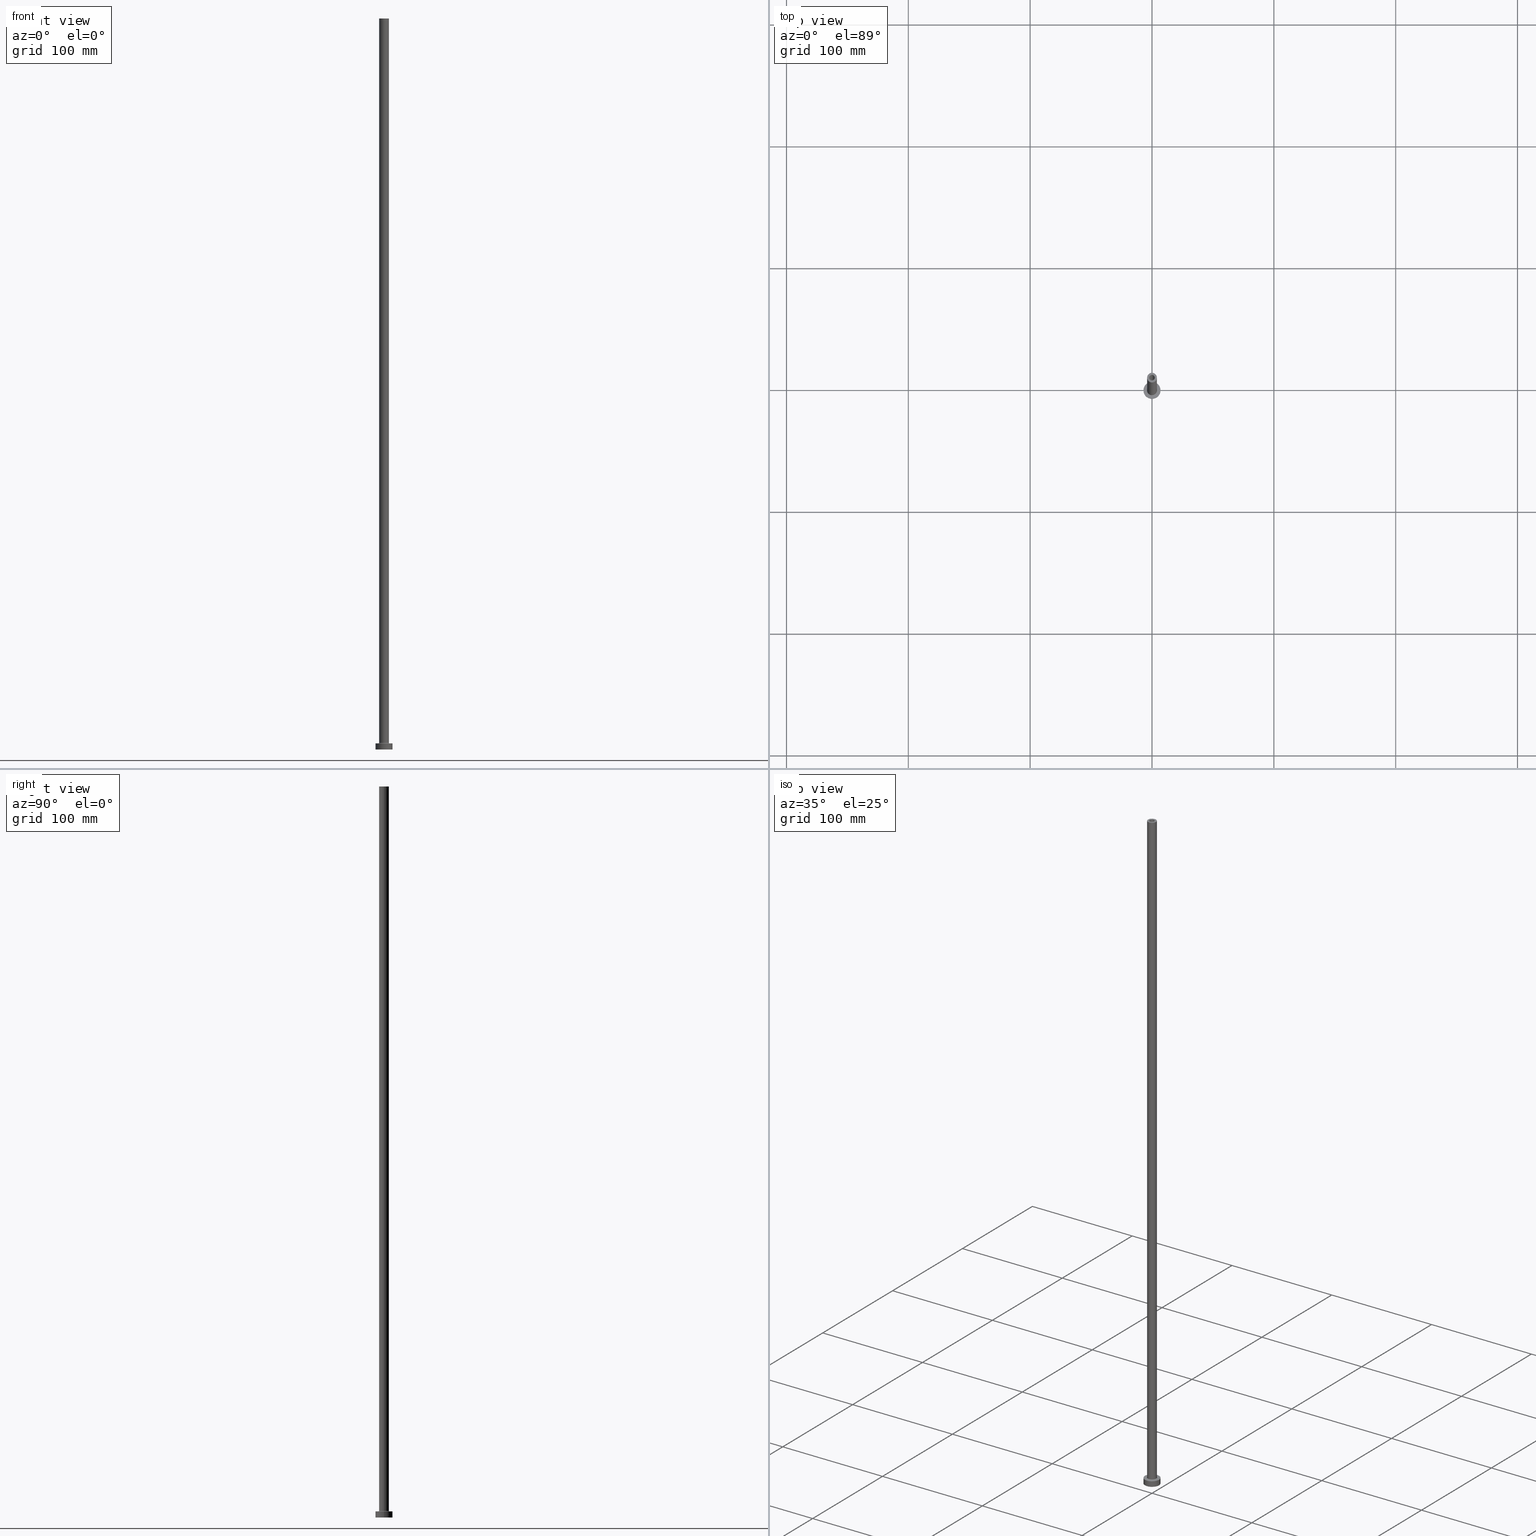
[diagram: canonical four-view strip — front | top / right | iso, engineering-drawing reading convention]
A machine part, canonical four-view strip (front | top / right | iso — engineering-drawing reading convention). The complete STEP part file that produces these views, byte-faithful:
ISO-10303-21;
HEADER;
FILE_DESCRIPTION (( 'STEP AP203' ),
    '1' );
FILE_NAME ('9037.STEP',
    '2023-02-13T17:20:11',
    ( '' ),
    ( '' ),
    'SwSTEP 2.0',
    'SolidWorks 2019',
    '' );
FILE_SCHEMA (( 'CONFIG_CONTROL_DESIGN' ));
ENDSEC;

DATA;
#1 = EDGE_LOOP ( 'NONE', ( #31, #64, #137, #22 ) ) ;
#2 = CARTESIAN_POINT ( 'NONE',  ( -2.250000000000000000, 0.000000000000000000, 600.0000000000000000 ) ) ;
#3 = APPROVAL ( #33, 'NEUR�EN�' ) ;
#4 = ORIENTED_EDGE ( 'NONE', *, *, #444, .F. ) ;
#5 = SHAPE_DEFINITION_REPRESENTATION ( #305, #226 ) ;
#6 = DIRECTION ( 'NONE',  ( 1.000000000000000000, 0.000000000000000000, 0.000000000000000000 ) ) ;
#7 = CARTESIAN_POINT ( 'NONE',  ( 0.000000000000000000, 0.000000000000000000, 600.0000000000000000 ) ) ;
#8 = CC_DESIGN_DATE_AND_TIME_ASSIGNMENT ( #203, #101, ( #122 ) ) ;
#9 = CARTESIAN_POINT ( 'NONE',  ( -2.399999999999999911, 0.000000000000000000, 554.9999999999998863 ) ) ;
#10 = ORIENTED_EDGE ( 'NONE', *, *, #105, .T. ) ;
#11 = LINE ( 'NONE', #293, #222 ) ;
#12 = AXIS2_PLACEMENT_3D ( 'NONE', #429, #252, #332 ) ;
#13 = FACE_BOUND ( 'NONE', #412, .T. ) ;
#14 = APPROVAL_ROLE ( '' ) ;
#15 = DIRECTION ( 'NONE',  ( -1.000000000000000000, 0.000000000000000000, 0.000000000000000000 ) ) ;
#16 = ADVANCED_FACE ( 'NONE', ( #440 ), #124, .T. ) ;
#17 = CARTESIAN_POINT ( 'NONE',  ( 0.000000000000000000, 0.000000000000000000, 0.000000000000000000 ) ) ;
#18 = VERTEX_POINT ( 'NONE', #267 ) ;
#19 = PRODUCT_RELATED_PRODUCT_CATEGORY ( 'detail', '', ( #352 ) ) ;
#20 = DIRECTION ( 'NONE',  ( 0.000000000000000000, 0.000000000000000000, 1.000000000000000000 ) ) ;
#21 = DIRECTION ( 'NONE',  ( 0.000000000000000000, 0.000000000000000000, -1.000000000000000000 ) ) ;
#22 = ORIENTED_EDGE ( 'NONE', *, *, #414, .F. ) ;
#23 = CIRCLE ( 'NONE', #326, 4.500000000000000888 ) ;
#24 = DIRECTION ( 'NONE',  ( 1.000000000000000000, 0.000000000000000000, 0.000000000000000000 ) ) ;
#25 = DIRECTION ( 'NONE',  ( -1.000000000000000000, 0.000000000000000000, 0.000000000000000000 ) ) ;
#26 = EDGE_CURVE ( 'NONE', #74, #346, #166, .T. ) ;
#27 = FACE_OUTER_BOUND ( 'NONE', #307, .T. ) ;
#28 = COORDINATED_UNIVERSAL_TIME_OFFSET ( 1, 0, .AHEAD. ) ;
#29 = AXIS2_PLACEMENT_3D ( 'NONE', #413, #439, #24 ) ;
#30 = DIRECTION ( 'NONE',  ( 0.000000000000000000, 0.000000000000000000, 1.000000000000000000 ) ) ;
#31 = ORIENTED_EDGE ( 'NONE', *, *, #44, .T. ) ;
#32 = APPROVAL_STATUS ( 'not_yet_approved' ) ;
#33 = APPROVAL_STATUS ( 'not_yet_approved' ) ;
#34 = PERSON_AND_ORGANIZATION ( #125, #61 ) ;
#35 = LINE ( 'NONE', #171, #405 ) ;
#36 = ADVANCED_FACE ( 'NONE', ( #230 ), #410, .T. ) ;
#37 = CARTESIAN_POINT ( 'NONE',  ( 0.000000000000000000, 0.000000000000000000, 554.9999999999998863 ) ) ;
#38 = ORIENTED_EDGE ( 'NONE', *, *, #322, .F. ) ;
#39 = EDGE_CURVE ( 'NONE', #272, #400, #169, .T. ) ;
#40 = DIRECTION ( 'NONE',  ( 0.000000000000000000, 0.000000000000000000, -1.000000000000000000 ) ) ;
#41 = PERSON_AND_ORGANIZATION ( #125, #61 ) ;
#42 = CARTESIAN_POINT ( 'NONE',  ( 7.000000000000000000, 8.572527594031473190E-16, 0.000000000000000000 ) ) ;
#43 = PERSON_AND_ORGANIZATION_ROLE ( 'design_owner' ) ;
#44 = EDGE_CURVE ( 'NONE', #87, #18, #299, .T. ) ;
#45 = CARTESIAN_POINT ( 'NONE',  ( 0.000000000000000000, 0.000000000000000000, 5.000000000000000000 ) ) ;
#46 = AXIS2_PLACEMENT_3D ( 'NONE', #216, #157, #290 ) ;
#47 = FACE_OUTER_BOUND ( 'NONE', #205, .T. ) ;
#48 = DIRECTION ( 'NONE',  ( 0.000000000000000000, 0.000000000000000000, 1.000000000000000000 ) ) ;
#49 = ORIENTED_EDGE ( 'NONE', *, *, #265, .T. ) ;
#50 = EDGE_CURVE ( 'NONE', #445, #346, #316, .T. ) ;
#51 = FACE_OUTER_BOUND ( 'NONE', #200, .T. ) ;
#52 = AXIS2_PLACEMENT_3D ( 'NONE', #298, #40, #72 ) ;
#53 = ORIENTED_EDGE ( 'NONE', *, *, #251, .T. ) ;
#54 = APPROVAL ( #32, 'NEUR�EN�' ) ;
#55 = AXIS2_PLACEMENT_3D ( 'NONE', #133, #21, #15 ) ;
#56 = LINE ( 'NONE', #311, #447 ) ;
#57 = FACE_OUTER_BOUND ( 'NONE', #217, .T. ) ;
#58 = ORIENTED_EDGE ( 'NONE', *, *, #394, .F. ) ;
#59 = ORIENTED_EDGE ( 'NONE', *, *, #39, .F. ) ;
#60 = CIRCLE ( 'NONE', #12, 2.399999999999999911 ) ;
#61 = ORGANIZATION ( 'NEUR�EN�', 'NEUR�EN�', '' ) ;
#62 = ORIENTED_EDGE ( 'NONE', *, *, #426, .F. ) ;
#63 = ORIENTED_EDGE ( 'NONE', *, *, #417, .T. ) ;
#64 = ORIENTED_EDGE ( 'NONE', *, *, #322, .T. ) ;
#65 = EDGE_CURVE ( 'NONE', #378, #76, #35, .T. ) ;
#66 = COORDINATED_UNIVERSAL_TIME_OFFSET ( 1, 0, .AHEAD. ) ;
#67 = AXIS2_PLACEMENT_3D ( 'NONE', #45, #223, #78 ) ;
#68 = CC_DESIGN_APPROVAL ( #313, ( #122 ) ) ;
#69 = ORIENTED_EDGE ( 'NONE', *, *, #50, .T. ) ;
#70 = DIRECTION ( 'NONE',  ( -0.000000000000000000, -0.000000000000000000, -1.000000000000000000 ) ) ;
#71 = AXIS2_PLACEMENT_3D ( 'NONE', #461, #242, #212 ) ;
#72 = DIRECTION ( 'NONE',  ( -1.000000000000000000, 0.000000000000000000, 0.000000000000000000 ) ) ;
#73 = CARTESIAN_POINT ( 'NONE',  ( 0.000000000000000000, 0.000000000000000000, 561.7882250993908428 ) ) ;
#74 = VERTEX_POINT ( 'NONE', #382 ) ;
#75 = CARTESIAN_POINT ( 'NONE',  ( 2.399999999999999911, 2.939152317953647106E-16, 0.000000000000000000 ) ) ;
#76 = VERTEX_POINT ( 'NONE', #143 ) ;
#77 = EDGE_CURVE ( 'NONE', #281, #76, #221, .T. ) ;
#78 = DIRECTION ( 'NONE',  ( -1.000000000000000000, 0.000000000000000000, 0.000000000000000000 ) ) ;
#79 = AXIS2_PLACEMENT_3D ( 'NONE', #134, #238, #312 ) ;
#80 = CARTESIAN_POINT ( 'NONE',  ( 4.500000000000000888, 0.000000000000000000, 5.499999999999949374 ) ) ;
#81 = DIRECTION ( 'NONE',  ( -0.000000000000000000, -0.000000000000000000, -1.000000000000000000 ) ) ;
#82 = EDGE_CURVE ( 'NONE', #378, #283, #363, .T. ) ;
#83 = LINE ( 'NONE', #345, #119 ) ;
#84 = AXIS2_PLACEMENT_3D ( 'NONE', #114, #434, #150 ) ;
#85 =( GEOMETRIC_REPRESENTATION_CONTEXT ( 3 ) GLOBAL_UNCERTAINTY_ASSIGNED_CONTEXT ( ( #282 ) ) GLOBAL_UNIT_ASSIGNED_CONTEXT ( ( #147, #418, #459 ) ) REPRESENTATION_CONTEXT ( 'NONE', 'WORKASPACE' ) );
#86 = LINE ( 'NONE', #441, #425 ) ;
#87 = VERTEX_POINT ( 'NONE', #2 ) ;
#88 = CARTESIAN_POINT ( 'NONE',  ( 0.000000000000000000, 0.000000000000000000, 5.000000000000000000 ) ) ;
#89 = CC_DESIGN_DATE_AND_TIME_ASSIGNMENT ( #97, #358, ( #390 ) ) ;
#90 = ORIENTED_EDGE ( 'NONE', *, *, #154, .T. ) ;
#91 = CC_DESIGN_APPROVAL ( #54, ( #390 ) ) ;
#92 = ADVANCED_FACE ( 'NONE', ( #423, #102 ), #353, .T. ) ;
#93 = EDGE_LOOP ( 'NONE', ( #162, #106, #206, #323 ) ) ;
#94 = CYLINDRICAL_SURFACE ( 'NONE', #52, 2.250000000000000000 ) ;
#95 = ADVANCED_FACE ( 'NONE', ( #209 ), #214, .F. ) ;
#96 = ORIENTED_EDGE ( 'NONE', *, *, #65, .T. ) ;
#97 = DATE_AND_TIME ( #319, #231 ) ;
#98 = DESIGN_CONTEXT ( 'detailed design', #104, 'design' ) ;
#99 = ORIENTED_EDGE ( 'NONE', *, *, #151, .F. ) ;
#100 = PRODUCT_DEFINITION_FORMATION_WITH_SPECIFIED_SOURCE ( 'LIBOVOLN�', '', #352, .NOT_KNOWN. ) ;
#101 = DATE_TIME_ROLE ( 'creation_date' ) ;
#102 = FACE_OUTER_BOUND ( 'NONE', #164, .T. ) ;
#103 = ORIENTED_EDGE ( 'NONE', *, *, #417, .F. ) ;
#104 = APPLICATION_CONTEXT ( 'configuration controlled 3d designs of mechanical parts and assemblies' ) ;
#105 = EDGE_CURVE ( 'NONE', #74, #152, #341, .T. ) ;
#106 = ORIENTED_EDGE ( 'NONE', *, *, #406, .T. ) ;
#107 = AXIS2_PLACEMENT_3D ( 'NONE', #73, #219, #365 ) ;
#108 = FACE_OUTER_BOUND ( 'NONE', #93, .T. ) ;
#109 = AXIS2_PLACEMENT_3D ( 'NONE', #451, #20, #126 ) ;
#110 = ORIENTED_EDGE ( 'NONE', *, *, #131, .F. ) ;
#111 = CARTESIAN_POINT ( 'NONE',  ( 0.000000000000000000, 0.000000000000000000, 5.000000000000000000 ) ) ;
#112 = ORIENTED_EDGE ( 'NONE', *, *, #208, .F. ) ;
#113 = ADVANCED_FACE ( 'NONE', ( #27 ), #139, .F. ) ;
#114 = CARTESIAN_POINT ( 'NONE',  ( 0.000000000000000000, 0.000000000000000000, 0.000000000000000000 ) ) ;
#115 = ORIENTED_EDGE ( 'NONE', *, *, #82, .F. ) ;
#116 = ADVANCED_FACE ( 'NONE', ( #317 ), #94, .F. ) ;
#117 = DATE_AND_TIME ( #436, #288 ) ;
#118 = DIRECTION ( 'NONE',  ( 0.000000000000000000, 0.000000000000000000, 1.000000000000000000 ) ) ;
#119 = VECTOR ( 'NONE', #266, 1000.000000000000000 ) ;
#120 = LOCAL_TIME ( 18, 20, 11.00000000000000000, #28 ) ;
#121 = AXIS2_PLACEMENT_3D ( 'NONE', #370, #48, #188 ) ;
#122 = PRODUCT_DEFINITION ( 'NEZN�M�', '', #100, #98 ) ;
#123 = PLANE ( 'NONE',  #192 ) ;
#124 = CYLINDRICAL_SURFACE ( 'NONE', #79, 4.000000000000000000 ) ;
#125 = PERSON ( 'NEUR�EN�', 'NEUR�EN�', 'NEUR�EN�', ('NEUR�EN�'), ('NEUR�EN�'), ('NEUR�EN�') ) ;
#126 = DIRECTION ( 'NONE',  ( 1.000000000000000000, 0.000000000000000000, 0.000000000000000000 ) ) ;
#127 = DIRECTION ( 'NONE',  ( -0.000000000000000000, -0.000000000000000000, -1.000000000000000000 ) ) ;
#128 = DIRECTION ( 'NONE',  ( -0.000000000000000000, -0.000000000000000000, -1.000000000000000000 ) ) ;
#129 = AXIS2_PLACEMENT_3D ( 'NONE', #197, #349, #25 ) ;
#130 = ORIENTED_EDGE ( 'NONE', *, *, #430, .F. ) ;
#131 = EDGE_CURVE ( 'NONE', #18, #87, #454, .T. ) ;
#132 = CC_DESIGN_APPROVAL ( #3, ( #100 ) ) ;
#133 = CARTESIAN_POINT ( 'NONE',  ( 0.000000000000000000, 0.000000000000000000, 561.7882250993908428 ) ) ;
#134 = CARTESIAN_POINT ( 'NONE',  ( 0.000000000000000000, 0.000000000000000000, 600.0000000000000000 ) ) ;
#135 = DATE_AND_TIME ( #450, #172 ) ;
#136 = DIRECTION ( 'NONE',  ( 0.000000000000000000, 0.000000000000000000, 1.000000000000000000 ) ) ;
#137 = ORIENTED_EDGE ( 'NONE', *, *, #257, .F. ) ;
#138 = DIRECTION ( 'NONE',  ( 1.000000000000000000, 0.000000000000000000, 0.000000000000000000 ) ) ;
#139 = TOROIDAL_SURFACE ( 'NONE', #189, 4.500000000000000888, 0.5000000000000000000 ) ;
#140 = COORDINATED_UNIVERSAL_TIME_OFFSET ( 1, 0, .AHEAD. ) ;
#141 = CC_DESIGN_PERSON_AND_ORGANIZATION_ASSIGNMENT ( #207, #176, ( #390 ) ) ;
#142 = ORIENTED_EDGE ( 'NONE', *, *, #403, .T. ) ;
#143 = CARTESIAN_POINT ( 'NONE',  ( -7.000000000000000000, 0.000000000000000000, 0.000000000000000000 ) ) ;
#144 = ORIENTED_EDGE ( 'NONE', *, *, #296, .F. ) ;
#145 = EDGE_LOOP ( 'NONE', ( #320, #110 ) ) ;
#146 = VECTOR ( 'NONE', #277, 1000.000000000000000 ) ;
#147 =( LENGTH_UNIT ( ) NAMED_UNIT ( * ) SI_UNIT ( .MILLI., .METRE. ) );
#148 = APPROVAL_PERSON_ORGANIZATION ( #336, #313, #14 ) ;
#149 = ORIENTED_EDGE ( 'NONE', *, *, #376, .F. ) ;
#150 = DIRECTION ( 'NONE',  ( 1.000000000000000000, 0.000000000000000000, 0.000000000000000000 ) ) ;
#151 = EDGE_CURVE ( 'NONE', #213, #400, #372, .T. ) ;
#152 = VERTEX_POINT ( 'NONE', #263 ) ;
#153 = AXIS2_PLACEMENT_3D ( 'NONE', #369, #364, #404 ) ;
#154 = EDGE_CURVE ( 'NONE', #445, #173, #355, .T. ) ;
#155 = CARTESIAN_POINT ( 'NONE',  ( -4.500000000000000888, 5.510910596163088569E-16, 4.999999999999975131 ) ) ;
#156 = CIRCLE ( 'NONE', #264, 7.000000000000000000 ) ;
#157 = DIRECTION ( 'NONE',  ( 0.000000000000000000, 0.000000000000000000, 1.000000000000000000 ) ) ;
#158 = AXIS2_PLACEMENT_3D ( 'NONE', #174, #321, #278 ) ;
#159 = CARTESIAN_POINT ( 'NONE',  ( -2.250000000000000000, 0.000000000000000000, 554.9999999999998863 ) ) ;
#160 = ORIENTED_EDGE ( 'NONE', *, *, #151, .T. ) ;
#161 = DIRECTION ( 'NONE',  ( 1.000000000000000000, 0.000000000000000000, 0.000000000000000000 ) ) ;
#162 = ORIENTED_EDGE ( 'NONE', *, *, #449, .F. ) ;
#163 = CARTESIAN_POINT ( 'NONE',  ( 0.000000000000000000, 0.000000000000000000, 5.000000000000000000 ) ) ;
#164 = EDGE_LOOP ( 'NONE', ( #270, #10 ) ) ;
#165 = FACE_OUTER_BOUND ( 'NONE', #286, .T. ) ;
#166 = LINE ( 'NONE', #195, #398 ) ;
#167 = APPROVAL_ROLE ( '' ) ;
#168 = DIRECTION ( 'NONE',  ( 0.000000000000000000, 0.000000000000000000, 1.000000000000000000 ) ) ;
#169 = LINE ( 'NONE', #452, #146 ) ;
#170 = ADVANCED_FACE ( 'NONE', ( #259 ), #254, .T. ) ;
#171 = CARTESIAN_POINT ( 'NONE',  ( -7.000000000000000000, 0.000000000000000000, 5.000000000000000000 ) ) ;
#172 = LOCAL_TIME ( 18, 20, 11.00000000000000000, #310 ) ;
#173 = VERTEX_POINT ( 'NONE', #155 ) ;
#174 = CARTESIAN_POINT ( 'NONE',  ( 0.000000000000000000, 0.000000000000000000, 5.000000000000000000 ) ) ;
#175 = ORIENTED_EDGE ( 'NONE', *, *, #430, .T. ) ;
#176 = PERSON_AND_ORGANIZATION_ROLE ( 'classification_officer' ) ;
#177 = CARTESIAN_POINT ( 'NONE',  ( 0.000000000000000000, 0.000000000000000000, 0.000000000000000000 ) ) ;
#178 = AXIS2_PLACEMENT_3D ( 'NONE', #37, #331, #397 ) ;
#179 = CIRCLE ( 'NONE', #273, 2.399999999999999911 ) ;
#180 = ADVANCED_FACE ( 'NONE', ( #47 ), #431, .F. ) ;
#181 = DIRECTION ( 'NONE',  ( 0.000000000000000000, -1.000000000000000000, 0.000000000000000000 ) ) ;
#182 = CARTESIAN_POINT ( 'NONE',  ( 7.000000000000000000, 8.572527594031473190E-16, 5.000000000000000000 ) ) ;
#183 = AXIS2_PLACEMENT_3D ( 'NONE', #7, #185, #187 ) ;
#184 = APPLICATION_CONTEXT ( 'configuration controlled 3d designs of mechanical parts and assemblies' ) ;
#185 = DIRECTION ( 'NONE',  ( 0.000000000000000000, 0.000000000000000000, -1.000000000000000000 ) ) ;
#186 = CIRCLE ( 'NONE', #253, 2.399999999999999911 ) ;
#187 = DIRECTION ( 'NONE',  ( -1.000000000000000000, 0.000000000000000000, 0.000000000000000000 ) ) ;
#188 = DIRECTION ( 'NONE',  ( 1.000000000000000000, 0.000000000000000000, -0.000000000000000000 ) ) ;
#189 = AXIS2_PLACEMENT_3D ( 'NONE', #280, #456, #421 ) ;
#190 = DIRECTION ( 'NONE',  ( 0.000000000000000000, 0.000000000000000000, -1.000000000000000000 ) ) ;
#191 = ORIENTED_EDGE ( 'NONE', *, *, #376, .T. ) ;
#192 = AXIS2_PLACEMENT_3D ( 'NONE', #88, #343, #276 ) ;
#193 = FACE_OUTER_BOUND ( 'NONE', #448, .T. ) ;
#194 = DIRECTION ( 'NONE',  ( 0.000000000000000000, 0.000000000000000000, -1.000000000000000000 ) ) ;
#195 = CARTESIAN_POINT ( 'NONE',  ( 4.000000000000000000, 4.898587196589412829E-16, 600.0000000000000000 ) ) ;
#196 = DIRECTION ( 'NONE',  ( 1.000000000000000000, 0.000000000000000000, 0.000000000000000000 ) ) ;
#197 = CARTESIAN_POINT ( 'NONE',  ( 0.000000000000000000, 0.000000000000000000, 5.000000000000000000 ) ) ;
#198 = APPROVAL_PERSON_ORGANIZATION ( #351, #54, #385 ) ;
#199 = DIRECTION ( 'NONE',  ( 0.000000000000000000, 0.000000000000000000, 1.000000000000000000 ) ) ;
#200 = EDGE_LOOP ( 'NONE', ( #240, #396 ) ) ;
#201 = CARTESIAN_POINT ( 'NONE',  ( 0.000000000000000000, 0.000000000000000000, 5.499999999999949374 ) ) ;
#202 = PERSON_AND_ORGANIZATION_ROLE ( 'creator' ) ;
#203 = DATE_AND_TIME ( #460, #120 ) ;
#204 = AXIS2_PLACEMENT_3D ( 'NONE', #289, #248, #395 ) ;
#205 = EDGE_LOOP ( 'NONE', ( #38, #243, #442, #103 ) ) ;
#206 = ORIENTED_EDGE ( 'NONE', *, *, #39, .T. ) ;
#207 = PERSON_AND_ORGANIZATION ( #125, #61 ) ;
#208 = EDGE_CURVE ( 'NONE', #346, #445, #386, .T. ) ;
#209 = FACE_OUTER_BOUND ( 'NONE', #384, .T. ) ;
#210 = EDGE_LOOP ( 'NONE', ( #350, #115, #96, #142 ) ) ;
#211 = APPROVAL_STATUS ( 'not_yet_approved' ) ;
#212 = DIRECTION ( 'NONE',  ( 1.000000000000000000, 0.000000000000000000, 0.000000000000000000 ) ) ;
#213 = VERTEX_POINT ( 'NONE', #75 ) ;
#214 = TOROIDAL_SURFACE ( 'NONE', #446, 4.500000000000000888, 0.5000000000000000000 ) ;
#215 = LOCAL_TIME ( 18, 20, 11.00000000000000000, #66 ) ;
#216 = CARTESIAN_POINT ( 'NONE',  ( 0.000000000000000000, 0.000000000000000000, 554.9999999999998863 ) ) ;
#217 = EDGE_LOOP ( 'NONE', ( #49, #255, #160, #59 ) ) ;
#218 = ADVANCED_FACE ( 'NONE', ( #13, #256 ), #220, .F. ) ;
#219 = DIRECTION ( 'NONE',  ( 0.000000000000000000, 0.000000000000000000, -1.000000000000000000 ) ) ;
#220 = PLANE ( 'NONE',  #46 ) ;
#221 = CIRCLE ( 'NONE', #291, 7.000000000000000000 ) ;
#222 = VECTOR ( 'NONE', #433, 1000.000000000000000 ) ;
#223 = DIRECTION ( 'NONE',  ( -0.000000000000000000, -0.000000000000000000, -1.000000000000000000 ) ) ;
#224 = CIRCLE ( 'NONE', #29, 4.000000000000000000 ) ;
#225 = PLANE ( 'NONE',  #121 ) ;
#226 = ADVANCED_BREP_SHAPE_REPRESENTATION ( '9037', ( #420, #300 ), #85 ) ;
#227 = DIRECTION ( 'NONE',  ( -1.000000000000000000, 0.000000000000000000, 0.000000000000000000 ) ) ;
#228 = DIRECTION ( 'NONE',  ( 0.000000000000000000, 0.000000000000000000, 1.000000000000000000 ) ) ;
#229 = CIRCLE ( 'NONE', #387, 0.5000000000000004441 ) ;
#230 = FACE_OUTER_BOUND ( 'NONE', #210, .T. ) ;
#231 = LOCAL_TIME ( 18, 20, 11.00000000000000000, #140 ) ;
#232 = DIRECTION ( 'NONE',  ( 1.000000000000000000, 0.000000000000000000, 0.000000000000000000 ) ) ;
#233 = ORIENTED_EDGE ( 'NONE', *, *, #154, .F. ) ;
#234 = CARTESIAN_POINT ( 'NONE',  ( 0.000000000000000000, 0.000000000000000000, 0.000000000000000000 ) ) ;
#235 = VERTEX_POINT ( 'NONE', #367 ) ;
#236 = CC_DESIGN_PERSON_AND_ORGANIZATION_ASSIGNMENT ( #41, #202, ( #100 ) ) ;
#237 = APPLICATION_PROTOCOL_DEFINITION ( 'international standard', 'config_control_design', 1994, #184 ) ;
#238 = DIRECTION ( 'NONE',  ( -0.000000000000000000, -0.000000000000000000, -1.000000000000000000 ) ) ;
#239 = APPROVAL_PERSON_ORGANIZATION ( #34, #3, #167 ) ;
#240 = ORIENTED_EDGE ( 'NONE', *, *, #82, .T. ) ;
#241 = DIRECTION ( 'NONE',  ( 1.000000000000000000, 0.000000000000000000, -0.000000000000000000 ) ) ;
#242 = DIRECTION ( 'NONE',  ( 0.000000000000000000, 0.000000000000000000, 1.000000000000000000 ) ) ;
#243 = ORIENTED_EDGE ( 'NONE', *, *, #131, .T. ) ;
#244 = CC_DESIGN_PERSON_AND_ORGANIZATION_ASSIGNMENT ( #258, #43, ( #352 ) ) ;
#245 = APPROVAL_DATE_TIME ( #422, #54 ) ;
#246 = CC_DESIGN_SECURITY_CLASSIFICATION ( #390, ( #100 ) ) ;
#247 = EDGE_LOOP ( 'NONE', ( #4, #99 ) ) ;
#248 = DIRECTION ( 'NONE',  ( 0.000000000000000000, 0.000000000000000000, 1.000000000000000000 ) ) ;
#249 = VERTEX_POINT ( 'NONE', #407 ) ;
#250 = APPLICATION_PROTOCOL_DEFINITION ( 'international standard', 'config_control_design', 1994, #104 ) ;
#251 = EDGE_CURVE ( 'NONE', #346, #235, #229, .T. ) ;
#252 = DIRECTION ( 'NONE',  ( 0.000000000000000000, 0.000000000000000000, 1.000000000000000000 ) ) ;
#253 = AXIS2_PLACEMENT_3D ( 'NONE', #17, #271, #161 ) ;
#254 = CYLINDRICAL_SURFACE ( 'NONE', #67, 7.000000000000000000 ) ;
#255 = ORIENTED_EDGE ( 'NONE', *, *, #449, .T. ) ;
#256 = FACE_OUTER_BOUND ( 'NONE', #302, .T. ) ;
#257 = EDGE_CURVE ( 'NONE', #309, #249, #287, .T. ) ;
#258 = PERSON_AND_ORGANIZATION ( #125, #61 ) ;
#259 = FACE_OUTER_BOUND ( 'NONE', #402, .T. ) ;
#260 = ORIENTED_EDGE ( 'NONE', *, *, #77, .T. ) ;
#261 = AXIS2_PLACEMENT_3D ( 'NONE', #427, #391, #241 ) ;
#262 = APPROVAL_DATE_TIME ( #117, #313 ) ;
#263 = CARTESIAN_POINT ( 'NONE',  ( -4.000000000000000000, 0.000000000000000000, 600.0000000000000000 ) ) ;
#264 = AXIS2_PLACEMENT_3D ( 'NONE', #163, #136, #443 ) ;
#265 = EDGE_CURVE ( 'NONE', #272, #357, #60, .T. ) ;
#266 = DIRECTION ( 'NONE',  ( 0.000000000000000000, 0.000000000000000000, -1.000000000000000000 ) ) ;
#267 = CARTESIAN_POINT ( 'NONE',  ( 2.250000000000000000, 2.755455298081544285E-16, 600.0000000000000000 ) ) ;
#268 = CARTESIAN_POINT ( 'NONE',  ( 0.000000000000000000, 0.000000000000000000, 5.000000000000000000 ) ) ;
#269 = CC_DESIGN_PERSON_AND_ORGANIZATION_ASSIGNMENT ( #354, #393, ( #100 ) ) ;
#270 = ORIENTED_EDGE ( 'NONE', *, *, #394, .T. ) ;
#271 = DIRECTION ( 'NONE',  ( -0.000000000000000000, -0.000000000000000000, -1.000000000000000000 ) ) ;
#272 = VERTEX_POINT ( 'NONE', #9 ) ;
#273 = AXIS2_PLACEMENT_3D ( 'NONE', #373, #168, #371 ) ;
#274 = CARTESIAN_POINT ( 'NONE',  ( 2.399999999999999911, 2.939152317953647106E-16, 554.9999999999998863 ) ) ;
#275 = APPROVAL_DATE_TIME ( #135, #3 ) ;
#276 = DIRECTION ( 'NONE',  ( 1.000000000000000000, 0.000000000000000000, -0.000000000000000000 ) ) ;
#277 = DIRECTION ( 'NONE',  ( 0.000000000000000000, 0.000000000000000000, -1.000000000000000000 ) ) ;
#278 = DIRECTION ( 'NONE',  ( 1.000000000000000000, 0.000000000000000000, 0.000000000000000000 ) ) ;
#279 = ADVANCED_FACE ( 'NONE', ( #108 ), #399, .F. ) ;
#280 = CARTESIAN_POINT ( 'NONE',  ( 0.000000000000000000, 0.000000000000000000, 5.499999999999949374 ) ) ;
#281 = VERTEX_POINT ( 'NONE', #42 ) ;
#282 = UNCERTAINTY_MEASURE_WITH_UNIT (LENGTH_MEASURE( 1.000000000000000082E-05 ), #147, 'distance_accuracy_value', 'NONE');
#283 = VERTEX_POINT ( 'NONE', #182 ) ;
#284 = CALENDAR_DATE ( 2023, 13, 2 ) ;
#285 = PERSON_AND_ORGANIZATION ( #125, #61 ) ;
#286 = EDGE_LOOP ( 'NONE', ( #435, #344 ) ) ;
#287 = CIRCLE ( 'NONE', #178, 2.250000000000000000 ) ;
#288 = LOCAL_TIME ( 18, 20, 11.00000000000000000, #297 ) ;
#289 = CARTESIAN_POINT ( 'NONE',  ( 0.000000000000000000, 0.000000000000000000, 600.0000000000000000 ) ) ;
#290 = DIRECTION ( 'NONE',  ( 1.000000000000000000, 0.000000000000000000, -0.000000000000000000 ) ) ;
#291 = AXIS2_PLACEMENT_3D ( 'NONE', #177, #388, #359 ) ;
#292 = CIRCLE ( 'NONE', #455, 4.500000000000000888 ) ;
#293 = CARTESIAN_POINT ( 'NONE',  ( 7.000000000000000000, 8.572527594031473190E-16, 5.000000000000000000 ) ) ;
#294 = EDGE_CURVE ( 'NONE', #283, #281, #11, .T. ) ;
#295 = CARTESIAN_POINT ( 'NONE',  ( 0.000000000000000000, 0.000000000000000000, 600.0000000000000000 ) ) ;
#296 = EDGE_CURVE ( 'NONE', #235, #173, #23, .T. ) ;
#297 = COORDINATED_UNIVERSAL_TIME_OFFSET ( 1, 0, .AHEAD. ) ;
#298 = CARTESIAN_POINT ( 'NONE',  ( 0.000000000000000000, 0.000000000000000000, 600.0000000000000000 ) ) ;
#299 = CIRCLE ( 'NONE', #325, 2.250000000000000000 ) ;
#300 = AXIS2_PLACEMENT_3D ( 'NONE', #360, #199, #138 ) ;
#301 = DIRECTION ( 'NONE',  ( -0.000000000000000000, -0.000000000000000000, -1.000000000000000000 ) ) ;
#302 = EDGE_LOOP ( 'NONE', ( #389, #383 ) ) ;
#303 = CYLINDRICAL_SURFACE ( 'NONE', #55, 2.399999999999999911 ) ;
#304 = ORIENTED_EDGE ( 'NONE', *, *, #65, .F. ) ;
#305 = PRODUCT_DEFINITION_SHAPE ( 'NONE', 'NONE',  #122 ) ;
#306 = FACE_BOUND ( 'NONE', #333, .T. ) ;
#307 = EDGE_LOOP ( 'NONE', ( #380, #90, #144, #361 ) ) ;
#308 = CARTESIAN_POINT ( 'NONE',  ( -7.000000000000000000, 0.000000000000000000, 5.000000000000000000 ) ) ;
#309 = VERTEX_POINT ( 'NONE', #159 ) ;
#310 = COORDINATED_UNIVERSAL_TIME_OFFSET ( 1, 0, .AHEAD. ) ;
#311 = CARTESIAN_POINT ( 'NONE',  ( -2.250000000000000000, 0.000000000000000000, 600.0000000000000000 ) ) ;
#312 = DIRECTION ( 'NONE',  ( -1.000000000000000000, 0.000000000000000000, 0.000000000000000000 ) ) ;
#313 = APPROVAL ( #211, 'NEUR�EN�' ) ;
#314 = MECHANICAL_CONTEXT ( 'NONE', #184, 'mechanical' ) ;
#315 = DIRECTION ( 'NONE',  ( 1.000000000000000000, 0.000000000000000000, 0.000000000000000000 ) ) ;
#316 = CIRCLE ( 'NONE', #71, 4.000000000000000000 ) ;
#317 = FACE_OUTER_BOUND ( 'NONE', #1, .T. ) ;
#318 = EDGE_LOOP ( 'NONE', ( #457, #392, #327, #149 ) ) ;
#319 = CALENDAR_DATE ( 2023, 13, 2 ) ;
#320 = ORIENTED_EDGE ( 'NONE', *, *, #44, .F. ) ;
#321 = DIRECTION ( 'NONE',  ( 0.000000000000000000, 0.000000000000000000, 1.000000000000000000 ) ) ;
#322 = EDGE_CURVE ( 'NONE', #18, #249, #83, .T. ) ;
#323 = ORIENTED_EDGE ( 'NONE', *, *, #444, .T. ) ;
#324 = DIRECTION ( 'NONE',  ( 0.000000000000000000, 0.000000000000000000, 1.000000000000000000 ) ) ;
#325 = AXIS2_PLACEMENT_3D ( 'NONE', #356, #30, #315 ) ;
#326 = AXIS2_PLACEMENT_3D ( 'NONE', #111, #401, #196 ) ;
#327 = ORIENTED_EDGE ( 'NONE', *, *, #208, .T. ) ;
#328 = ADVANCED_FACE ( 'NONE', ( #193 ), #348, .T. ) ;
#329 = CIRCLE ( 'NONE', #109, 2.250000000000000000 ) ;
#330 = AXIS2_PLACEMENT_3D ( 'NONE', #234, #228, #232 ) ;
#331 = DIRECTION ( 'NONE',  ( 0.000000000000000000, 0.000000000000000000, 1.000000000000000000 ) ) ;
#332 = DIRECTION ( 'NONE',  ( 1.000000000000000000, 0.000000000000000000, 0.000000000000000000 ) ) ;
#333 = EDGE_LOOP ( 'NONE', ( #416, #175 ) ) ;
#334 = CARTESIAN_POINT ( 'NONE',  ( 0.000000000000000000, 0.000000000000000000, 5.499999999999949374 ) ) ;
#335 = AXIS2_PLACEMENT_3D ( 'NONE', #295, #118, #437 ) ;
#336 = PERSON_AND_ORGANIZATION ( #125, #61 ) ;
#337 = DIRECTION ( 'NONE',  ( 1.000000000000000000, 0.000000000000000000, 0.000000000000000000 ) ) ;
#338 = DIRECTION ( 'NONE',  ( 0.000000000000000000, 0.000000000000000000, 1.000000000000000000 ) ) ;
#339 = CARTESIAN_POINT ( 'NONE',  ( 4.000000000000000000, 4.898587196589412829E-16, 5.499999999999949374 ) ) ;
#340 = ADVANCED_FACE ( 'NONE', ( #57 ), #303, .F. ) ;
#341 = CIRCLE ( 'NONE', #204, 4.000000000000000000 ) ;
#342 = CLOSED_SHELL ( 'NONE', ( #116, #340, #113, #16, #170, #36, #428, #453, #328, #92, #95, #279, #218, #180 ) ) ;
#343 = DIRECTION ( 'NONE',  ( 0.000000000000000000, 0.000000000000000000, 1.000000000000000000 ) ) ;
#344 = ORIENTED_EDGE ( 'NONE', *, *, #77, .F. ) ;
#345 = CARTESIAN_POINT ( 'NONE',  ( 2.250000000000000000, 2.755455298081544285E-16, 600.0000000000000000 ) ) ;
#346 = VERTEX_POINT ( 'NONE', #339 ) ;
#347 = CARTESIAN_POINT ( 'NONE',  ( 0.000000000000000000, 0.000000000000000000, 600.0000000000000000 ) ) ;
#348 = CYLINDRICAL_SURFACE ( 'NONE', #379, 4.000000000000000000 ) ;
#349 = DIRECTION ( 'NONE',  ( -0.000000000000000000, -0.000000000000000000, -1.000000000000000000 ) ) ;
#350 = ORIENTED_EDGE ( 'NONE', *, *, #294, .F. ) ;
#351 = PERSON_AND_ORGANIZATION ( #125, #61 ) ;
#352 = PRODUCT ( '9037', '9037', '', ( #314 ) ) ;
#353 = PLANE ( 'NONE',  #261 ) ;
#354 = PERSON_AND_ORGANIZATION ( #125, #61 ) ;
#355 = CIRCLE ( 'NONE', #153, 0.5000000000000004441 ) ;
#356 = CARTESIAN_POINT ( 'NONE',  ( 0.000000000000000000, 0.000000000000000000, 600.0000000000000000 ) ) ;
#357 = VERTEX_POINT ( 'NONE', #274 ) ;
#358 = DATE_TIME_ROLE ( 'classification_date' ) ;
#359 = DIRECTION ( 'NONE',  ( 1.000000000000000000, 0.000000000000000000, 0.000000000000000000 ) ) ;
#360 = CARTESIAN_POINT ( 'NONE',  ( 0.000000000000000000, 0.000000000000000000, 0.000000000000000000 ) ) ;
#361 = ORIENTED_EDGE ( 'NONE', *, *, #251, .F. ) ;
#362 = DIRECTION ( 'NONE',  ( 0.000000000000000000, 0.000000000000000000, -1.000000000000000000 ) ) ;
#363 = CIRCLE ( 'NONE', #158, 7.000000000000000000 ) ;
#364 = DIRECTION ( 'NONE',  ( 1.224646799147353207E-16, 1.000000000000000000, -0.000000000000000000 ) ) ;
#365 = DIRECTION ( 'NONE',  ( -1.000000000000000000, 0.000000000000000000, 0.000000000000000000 ) ) ;
#366 = CC_DESIGN_PERSON_AND_ORGANIZATION_ASSIGNMENT ( #285, #381, ( #122 ) ) ;
#367 = CARTESIAN_POINT ( 'NONE',  ( 4.500000000000000888, 0.000000000000000000, 4.999999999999975131 ) ) ;
#368 = AXIS2_PLACEMENT_3D ( 'NONE', #334, #338, #337 ) ;
#369 = CARTESIAN_POINT ( 'NONE',  ( -4.500000000000000888, 5.510910596163089556E-16, 5.499999999999949374 ) ) ;
#370 = CARTESIAN_POINT ( 'NONE',  ( 0.000000000000000000, 0.000000000000000000, 0.000000000000000000 ) ) ;
#371 = DIRECTION ( 'NONE',  ( 1.000000000000000000, 0.000000000000000000, 0.000000000000000000 ) ) ;
#372 = CIRCLE ( 'NONE', #84, 2.399999999999999911 ) ;
#373 = CARTESIAN_POINT ( 'NONE',  ( 0.000000000000000000, 0.000000000000000000, 554.9999999999998863 ) ) ;
#374 = FACE_BOUND ( 'NONE', #247, .T. ) ;
#375 = ORIENTED_EDGE ( 'NONE', *, *, #257, .T. ) ;
#376 = EDGE_CURVE ( 'NONE', #152, #445, #86, .T. ) ;
#377 = CARTESIAN_POINT ( 'NONE',  ( 2.399999999999999911, 2.939152317953647106E-16, 561.7882250993908428 ) ) ;
#378 = VERTEX_POINT ( 'NONE', #308 ) ;
#379 = AXIS2_PLACEMENT_3D ( 'NONE', #347, #81, #227 ) ;
#380 = ORIENTED_EDGE ( 'NONE', *, *, #50, .F. ) ;
#381 = PERSON_AND_ORGANIZATION_ROLE ( 'creator' ) ;
#382 = CARTESIAN_POINT ( 'NONE',  ( 4.000000000000000000, 4.898587196589412829E-16, 600.0000000000000000 ) ) ;
#383 = ORIENTED_EDGE ( 'NONE', *, *, #406, .F. ) ;
#384 = EDGE_LOOP ( 'NONE', ( #233, #112, #53, #130 ) ) ;
#385 = APPROVAL_ROLE ( '' ) ;
#386 = CIRCLE ( 'NONE', #368, 4.000000000000000000 ) ;
#387 = AXIS2_PLACEMENT_3D ( 'NONE', #80, #181, #362 ) ;
#388 = DIRECTION ( 'NONE',  ( 0.000000000000000000, 0.000000000000000000, 1.000000000000000000 ) ) ;
#389 = ORIENTED_EDGE ( 'NONE', *, *, #265, .F. ) ;
#390 = SECURITY_CLASSIFICATION ( '', '', #458 ) ;
#391 = DIRECTION ( 'NONE',  ( 0.000000000000000000, 0.000000000000000000, 1.000000000000000000 ) ) ;
#392 = ORIENTED_EDGE ( 'NONE', *, *, #26, .T. ) ;
#393 = PERSON_AND_ORGANIZATION_ROLE ( 'design_supplier' ) ;
#394 = EDGE_CURVE ( 'NONE', #152, #74, #224, .T. ) ;
#395 = DIRECTION ( 'NONE',  ( 1.000000000000000000, 0.000000000000000000, 0.000000000000000000 ) ) ;
#396 = ORIENTED_EDGE ( 'NONE', *, *, #426, .T. ) ;
#397 = DIRECTION ( 'NONE',  ( 1.000000000000000000, 0.000000000000000000, 0.000000000000000000 ) ) ;
#398 = VECTOR ( 'NONE', #127, 1000.000000000000000 ) ;
#399 = CYLINDRICAL_SURFACE ( 'NONE', #107, 2.399999999999999911 ) ;
#400 = VERTEX_POINT ( 'NONE', #408 ) ;
#401 = DIRECTION ( 'NONE',  ( -0.000000000000000000, -0.000000000000000000, -1.000000000000000000 ) ) ;
#402 = EDGE_LOOP ( 'NONE', ( #62, #432, #260, #304 ) ) ;
#403 = EDGE_CURVE ( 'NONE', #76, #281, #419, .T. ) ;
#404 = DIRECTION ( 'NONE',  ( -1.000000000000000000, 1.224646799147351482E-16, 0.000000000000000000 ) ) ;
#405 = VECTOR ( 'NONE', #70, 1000.000000000000000 ) ;
#406 = EDGE_CURVE ( 'NONE', #357, #272, #179, .T. ) ;
#407 = CARTESIAN_POINT ( 'NONE',  ( 2.250000000000000000, 2.755455298081544285E-16, 554.9999999999998863 ) ) ;
#408 = CARTESIAN_POINT ( 'NONE',  ( -2.399999999999999911, 0.000000000000000000, 0.000000000000000000 ) ) ;
#409 = CARTESIAN_POINT ( 'NONE',  ( -4.000000000000000000, 0.000000000000000000, 5.499999999999949374 ) ) ;
#410 = CYLINDRICAL_SURFACE ( 'NONE', #129, 7.000000000000000000 ) ;
#411 = LINE ( 'NONE', #377, #438 ) ;
#412 = EDGE_LOOP ( 'NONE', ( #375, #63 ) ) ;
#413 = CARTESIAN_POINT ( 'NONE',  ( 0.000000000000000000, 0.000000000000000000, 600.0000000000000000 ) ) ;
#414 = EDGE_CURVE ( 'NONE', #87, #309, #56, .T. ) ;
#415 = DIRECTION ( 'NONE',  ( 1.000000000000000000, 0.000000000000000000, 0.000000000000000000 ) ) ;
#416 = ORIENTED_EDGE ( 'NONE', *, *, #296, .T. ) ;
#417 = EDGE_CURVE ( 'NONE', #249, #309, #329, .T. ) ;
#418 =( NAMED_UNIT ( * ) PLANE_ANGLE_UNIT ( ) SI_UNIT ( $, .RADIAN. ) );
#419 = CIRCLE ( 'NONE', #330, 7.000000000000000000 ) ;
#420 = MANIFOLD_SOLID_BREP ( 'Odebrat vysunut�m4', #342 ) ;
#421 = DIRECTION ( 'NONE',  ( 1.000000000000000000, 0.000000000000000000, 0.000000000000000000 ) ) ;
#422 = DATE_AND_TIME ( #284, #215 ) ;
#423 = FACE_BOUND ( 'NONE', #145, .T. ) ;
#424 = ORIENTED_EDGE ( 'NONE', *, *, #26, .F. ) ;
#425 = VECTOR ( 'NONE', #301, 1000.000000000000000 ) ;
#426 = EDGE_CURVE ( 'NONE', #283, #378, #156, .T. ) ;
#427 = CARTESIAN_POINT ( 'NONE',  ( 0.000000000000000000, 0.000000000000000000, 600.0000000000000000 ) ) ;
#428 = ADVANCED_FACE ( 'NONE', ( #306, #51 ), #123, .T. ) ;
#429 = CARTESIAN_POINT ( 'NONE',  ( 0.000000000000000000, 0.000000000000000000, 554.9999999999998863 ) ) ;
#430 = EDGE_CURVE ( 'NONE', #173, #235, #292, .T. ) ;
#431 = CYLINDRICAL_SURFACE ( 'NONE', #183, 2.250000000000000000 ) ;
#432 = ORIENTED_EDGE ( 'NONE', *, *, #294, .T. ) ;
#433 = DIRECTION ( 'NONE',  ( -0.000000000000000000, -0.000000000000000000, -1.000000000000000000 ) ) ;
#434 = DIRECTION ( 'NONE',  ( -0.000000000000000000, -0.000000000000000000, -1.000000000000000000 ) ) ;
#435 = ORIENTED_EDGE ( 'NONE', *, *, #403, .F. ) ;
#436 = CALENDAR_DATE ( 2023, 13, 2 ) ;
#437 = DIRECTION ( 'NONE',  ( 1.000000000000000000, 0.000000000000000000, 0.000000000000000000 ) ) ;
#438 = VECTOR ( 'NONE', #194, 1000.000000000000000 ) ;
#439 = DIRECTION ( 'NONE',  ( 0.000000000000000000, 0.000000000000000000, 1.000000000000000000 ) ) ;
#440 = FACE_OUTER_BOUND ( 'NONE', #318, .T. ) ;
#441 = CARTESIAN_POINT ( 'NONE',  ( -4.000000000000000000, 0.000000000000000000, 600.0000000000000000 ) ) ;
#442 = ORIENTED_EDGE ( 'NONE', *, *, #414, .T. ) ;
#443 = DIRECTION ( 'NONE',  ( 1.000000000000000000, 0.000000000000000000, 0.000000000000000000 ) ) ;
#444 = EDGE_CURVE ( 'NONE', #400, #213, #186, .T. ) ;
#445 = VERTEX_POINT ( 'NONE', #409 ) ;
#446 = AXIS2_PLACEMENT_3D ( 'NONE', #201, #324, #6 ) ;
#447 = VECTOR ( 'NONE', #190, 1000.000000000000000 ) ;
#448 = EDGE_LOOP ( 'NONE', ( #424, #58, #191, #69 ) ) ;
#449 = EDGE_CURVE ( 'NONE', #357, #213, #411, .T. ) ;
#450 = CALENDAR_DATE ( 2023, 13, 2 ) ;
#451 = CARTESIAN_POINT ( 'NONE',  ( 0.000000000000000000, 0.000000000000000000, 554.9999999999998863 ) ) ;
#452 = CARTESIAN_POINT ( 'NONE',  ( -2.399999999999999911, 0.000000000000000000, 561.7882250993908428 ) ) ;
#453 = ADVANCED_FACE ( 'NONE', ( #374, #165 ), #225, .F. ) ;
#454 = CIRCLE ( 'NONE', #335, 2.250000000000000000 ) ;
#455 = AXIS2_PLACEMENT_3D ( 'NONE', #268, #128, #415 ) ;
#456 = DIRECTION ( 'NONE',  ( 0.000000000000000000, 0.000000000000000000, 1.000000000000000000 ) ) ;
#457 = ORIENTED_EDGE ( 'NONE', *, *, #105, .F. ) ;
#458 = SECURITY_CLASSIFICATION_LEVEL ( 'unclassified' ) ;
#459 =( NAMED_UNIT ( * ) SI_UNIT ( $, .STERADIAN. ) SOLID_ANGLE_UNIT ( ) );
#460 = CALENDAR_DATE ( 2023, 13, 2 ) ;
#461 = CARTESIAN_POINT ( 'NONE',  ( 0.000000000000000000, 0.000000000000000000, 5.499999999999949374 ) ) ;
ENDSEC;
END-ISO-10303-21;
